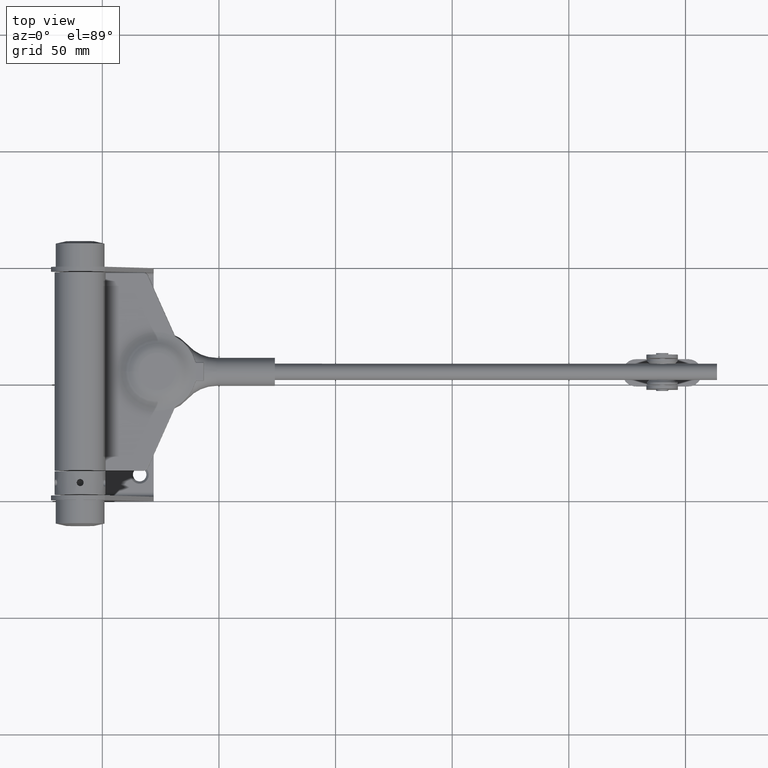
[diagram: clean part render]
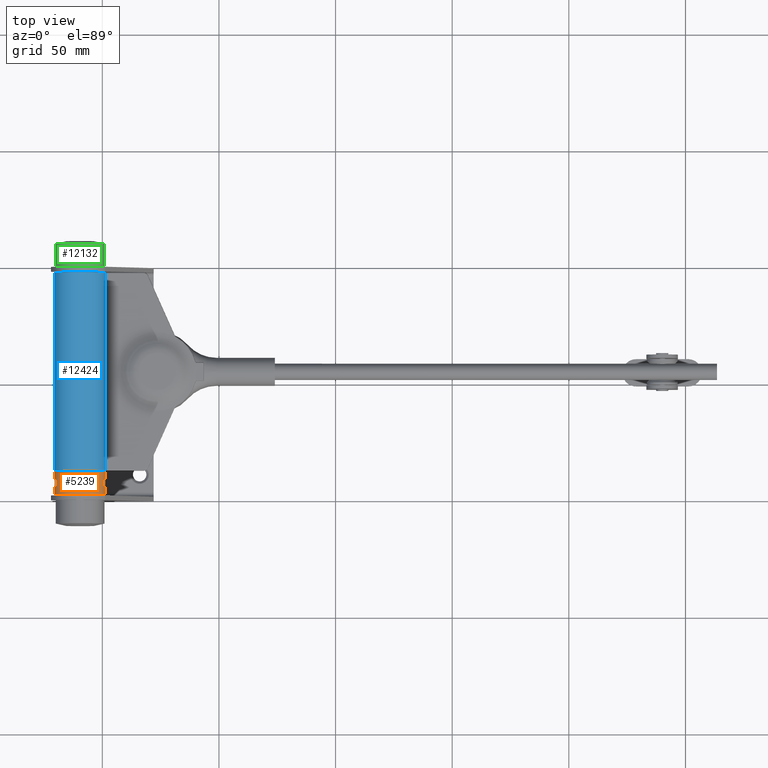
[diagram: same view with three faces highlighted in distinct colors, each labeled with its STEP entity id]
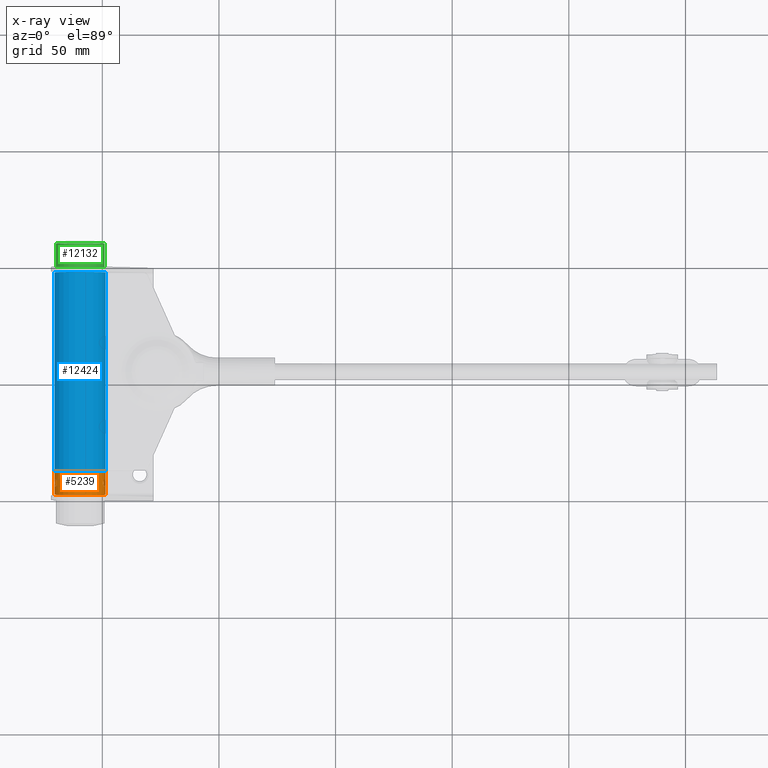
[diagram: x-ray of the same camera — body ghosted, the three highlighted faces saturated]
A machine part, top view with three faces highlighted in distinct colors.
The next image is the same camera in x-ray (body ghosted, the three faces saturated) — at least one of them is partly hidden behind the body in this view.
Their STEP definitions:

[orange] entity #5239 — the highlighted cylindrical surface (bore or boss wall) has radius 11 mm, axis along (0, 1, 0).
#12 = CARTESIAN_POINT ( 'NONE',  ( 6.148529388612073987, 1.452431181521820269, -9.121666627276168171 ) ) ;
#14 = CARTESIAN_POINT ( 'NONE',  ( -7.562714722497001496, -0.4839463892377865450, -7.987915090718844091 ) ) ;
#50 = CARTESIAN_POINT ( 'NONE',  ( -0.9155106826520545971, 1.192215103256997422, 10.96213776218510461 ) ) ;
#62 = CARTESIAN_POINT ( 'NONE',  ( -10.72588113288015776, 1.128852651718871281, 2.441370421391579004 ) ) ;
#170 = CARTESIAN_POINT ( 'NONE',  ( 5.840314493451181477, -1.310680290924018276, -9.323270563392430432 ) ) ;
#239 = CARTESIAN_POINT ( 'NONE',  ( 5.704354102470228227, 1.193704798455214711, -9.405691653094068627 ) ) ;
#364 = CARTESIAN_POINT ( 'NONE',  ( 10.82048223838720347, 0.3955845421627395275, 1.980626412705488892 ) ) ;
#389 = CARTESIAN_POINT ( 'NONE',  ( -7.396986753916988455, 0.9234156699492940268, -8.142719843050402417 ) ) ;
#419 = EDGE_LOOP ( 'NONE', ( #21711 ) ) ;
#437 = CARTESIAN_POINT ( 'NONE',  ( 10.75560056494222927, -0.9916825642055926426, 2.306919381528580448 ) ) ;
#502 = CARTESIAN_POINT ( 'NONE',  ( 0.9212546559148031555, 1.199803542943235435, 10.96223630213403943 ) ) ;
#514 = CARTESIAN_POINT ( 'NONE',  ( 10.14139049093541622, -1.200862300451586373, 4.262858235214821434 ) ) ;
#530 = CYLINDRICAL_SURFACE ( 'NONE', #16997, 11.00000000000000000 ) ;
#588 = CARTESIAN_POINT ( 'NONE',  ( 1.734723475976807094E-15, 4.999999999999997335, 0.000000000000000000 ) ) ;
#618 = CARTESIAN_POINT ( 'NONE',  ( -6.991502801425998115, 1.348456892399369389, -8.492770773105631221 ) ) ;
#987 = VERTEX_POINT ( 'NONE', #14438 ) ;
#1495 = CARTESIAN_POINT ( 'NONE',  ( 5.191715796553792117, -1.219727444046192488E-16, -9.697736183657184483 ) ) ;
#1573 = CARTESIAN_POINT ( 'NONE',  ( 5.200397838848361154, -0.1967606968004345924, -9.693102352215765549 ) ) ;
#1736 = CARTESIAN_POINT ( 'NONE',  ( -7.345490451056918779, -0.9916825642055963064, -8.188320375931157358 ) ) ;
#1790 = CARTESIAN_POINT ( 'NONE',  ( 1.734723475976807094E-15, -4.999999999999997335, 11.00000000000000000 ) ) ;
#1815 = CARTESIAN_POINT ( 'NONE',  ( 6.627153609737886697, 1.499825000284431775, -8.781809318381252893 ) ) ;
#1854 = CARTESIAN_POINT ( 'NONE',  ( -0.7516548559057335543, -1.301774344498628722, 10.97459305519629780 ) ) ;
#1867 = CARTESIAN_POINT ( 'NONE',  ( -10.39999180744122143, 1.490434260984158099, 3.584604037679150146 ) ) ;
#1893 = CARTESIAN_POINT ( 'NONE',  ( 6.069099558319106080, 1.423599352457329159, -9.174655163987134543 ) ) ;
#2009 = CARTESIAN_POINT ( 'NONE',  ( 0.7563379066569094755, -1.310005723733510985, 10.97545342880767016 ) ) ;
#2045 = CARTESIAN_POINT ( 'NONE',  ( 6.544205991239731901, -1.500054600960704088, -8.842112991082993645 ) ) ;
#2064 = CARTESIAN_POINT ( 'NONE',  ( 1.734723475976807094E-15, 4.999999999999997335, 0.000000000000000000 ) ) ;
#2084 = CARTESIAN_POINT ( 'NONE',  ( 1.452431637780416063, -0.3873145048288275105, 10.90370624911236597 ) ) ;
#2128 = CARTESIAN_POINT ( 'NONE',  ( -7.182601977342327082, 1.193704798455212046, -8.331681705065935972 ) ) ;
#2168 = CARTESIAN_POINT ( 'NONE',  ( 10.52240335422114725, -1.499890092889741400, 3.212071677671953118 ) ) ;
#2201 = CARTESIAN_POINT ( 'NONE',  ( -5.840246068389841838, -1.310826343423883822, -9.323338878639892968 ) ) ;
#2237 = CARTESIAN_POINT ( 'NONE',  ( 1.302460655520604860, -0.7504703599725630614, 10.92275567198693231 ) ) ;
#2251 = CARTESIAN_POINT ( 'NONE',  ( 10.49187094668844367, 1.500086629875221123, 3.306127493897090819 ) ) ;
#2314 = CARTESIAN_POINT ( 'NONE',  ( 1.301112446651470966, 0.7527893807653758262, 10.92291670360245348 ) ) ;
#2325 = CARTESIAN_POINT ( 'NONE',  ( 9.982041754464503924, 0.7540569334361674203, 4.622176391939986750 ) ) ;
#2352 = CARTESIAN_POINT ( 'NONE',  ( -6.069166663914760562, -1.423632055747012126, -9.174611517767445434 ) ) ;
#2495 = ORIENTED_EDGE ( 'NONE', *, *, #4241, .T. ) ;
#3130 = CARTESIAN_POINT ( 'NONE',  ( -10.20499461799090035, -1.310680290924016500, 4.109833600939638565 ) ) ;
#3210 = CARTESIAN_POINT ( 'NONE',  ( -9.985964145444786055, -0.7516487550839664467, 4.613406614267189454 ) ) ;
#3429 = CARTESIAN_POINT ( 'NONE',  ( 1.802486111757151122E-15, -1.499999999999994671, 11.00000000000000355 ) ) ;
#3521 = CARTESIAN_POINT ( 'NONE',  ( -10.79936843061965313, -0.6654642516021228582, 2.091669622598185896 ) ) ;
#3541 = CARTESIAN_POINT ( 'NONE',  ( 5.227400555143736582, 0.3955845421627425806, -9.678842921240249808 ) ) ;
#3542 = CARTESIAN_POINT ( 'NONE',  ( -7.062200791526457522, -1.310680290924018943, -8.435518203453703734 ) ) ;
#3594 = CARTESIAN_POINT ( 'NONE',  ( 1.734723475976807094E-15, -1.499999999999994449, 11.00000000000000355 ) ) ;
#3678 = CARTESIAN_POINT ( 'NONE',  ( -10.43139488177107488, 1.500086629875221123, 3.492253683286428156 ) ) ;
#3786 = CARTESIAN_POINT ( 'NONE',  ( 5.916611803302485484, 1.348456892399370499, -9.273724796212500010 ) ) ;
#3836 = CARTESIAN_POINT ( 'NONE',  ( 10.02928012779930000, 0.9212460349021179828, 4.520265762387386310 ) ) ;
#3869 = CARTESIAN_POINT ( 'NONE',  ( 7.472763403791653936, -0.7531955497149609435, -8.072223734441827503 ) ) ;
#3872 = CARTESIAN_POINT ( 'NONE',  ( -5.702697399548497970, 1.192215286157109588, -9.406694524172358740 ) ) ;
#3914 = CARTESIAN_POINT ( 'NONE',  ( 10.67171365346788292, -1.310680290924018720, 2.673420108965852027 ) ) ;
#3989 = CARTESIAN_POINT ( 'NONE',  ( 10.05720356238577473, -0.9911323540295613466, 4.456186358370620937 ) ) ;
#4019 = CARTESIAN_POINT ( 'NONE',  ( -5.200527257715965135, -0.1980102255760640972, -9.693033239276866553 ) ) ;
#4051 = CARTESIAN_POINT ( 'NONE',  ( 1.500086735841702934, -0.09785148346196384517, 10.89723541971634724 ) ) ;
#4062 = CARTESIAN_POINT ( 'NONE',  ( 10.14269542414140801, 1.192215286157108700, 4.258214301208017361 ) ) ;
#4092 = CARTESIAN_POINT ( 'NONE',  ( -5.517167974941250996, -0.9911323540295565726, -9.516606427297297444 ) ) ;
#4125 = CARTESIAN_POINT ( 'NONE',  ( 1.460549597430521596, 0.3943136771651463146, 10.90287073325300327 ) ) ;
#4136 = CARTESIAN_POINT ( 'NONE',  ( 10.39990006685026103, 1.499825000284430665, 3.589069304290117390 ) ) ;
#4165 = CARTESIAN_POINT ( 'NONE',  ( -7.479596790665397954, 0.7563316221577112142, -8.066061536278244404 ) ) ;
#4241 = EDGE_CURVE ( 'NONE', #19837, #19837, #5773, .T. ) ;
#4951 = CARTESIAN_POINT ( 'NONE',  ( -10.49163747686554693, -1.500054600960703866, 3.306831906354939843 ) ) ;
#5214 = CARTESIAN_POINT ( 'NONE',  ( 5.234306830161281177, -0.3886218608046746459, -9.674833481799902657 ) ) ;
#5239 = ADVANCED_FACE ( 'NONE', ( #14468, #10773, #18760, #21056, #23608, #9050, #11912 ), #530, .T. ) ;
#5247 = CARTESIAN_POINT ( 'NONE',  ( -1.500054661872485262, 0.09710879590426363395, 10.89723983467673385 ) ) ;
#5262 = CARTESIAN_POINT ( 'NONE',  ( -10.81354422451033237, -0.4839264239596210992, 2.017102281720891011 ) ) ;
#5332 = CARTESIAN_POINT ( 'NONE',  ( 10.79936178432930483, -0.6655396847754680989, 2.091704214647600146 ) ) ;
#5334 = CARTESIAN_POINT ( 'NONE',  ( -10.30273168349423685, 1.423599352457327383, 3.855124730120790488 ) ) ;
#5362 = CARTESIAN_POINT ( 'NONE',  ( 7.062286907694512728, -1.310826343423885820, -8.435474237925685514 ) ) ;
#5448 = CARTESIAN_POINT ( 'NONE',  ( 7.184067713773785613, 1.192215286157107590, -8.330415991163020450 ) ) ;
#5507 = CARTESIAN_POINT ( 'NONE',  ( -10.23759816702382075, 1.348456892399368501, 4.024903799771543333 ) ) ;
#5612 = CARTESIAN_POINT ( 'NONE',  ( 7.345931890619395332, -0.9911323540295587931, -8.187931668875508606 ) ) ;
#5648 = CARTESIAN_POINT ( 'NONE',  ( 0.3929095347849420050, 1.460757429368037430, 10.99446764604949323 ) ) ;
#5687 = CARTESIAN_POINT ( 'NONE',  ( 7.590304740456137900, 0.3929074165688639098, -7.961968734747020271 ) ) ;
#5689 = CARTESIAN_POINT ( 'NONE',  ( -5.191649720360737241, 0.1953220818559212313, -9.697771557770991535 ) ) ;
#5773 = B_SPLINE_CURVE_WITH_KNOTS ( 'NONE', 3,
 ( #14382, #18396, #16236, #7467, #14, #12630, #7138, #8968, #1736, #14467, #3542, #13182, #9613, #9698, #13025, #11287, #2352, #2201, #11519, #4092, #14951, #16943, #13257, #5845, #16787, #4019, #11439, #5689, #9455, #22284, #14795, #16637, #3872, #7623, #11365, #18615, #7695, #18547, #20617, #18469, #9534, #618, #15114, #2128, #7546, #389, #4165, #13102, #6005, #22437 ),
 .UNSPECIFIED., .T., .F.,
 ( 4, 2, 2, 2, 2, 2, 2, 2, 2, 2, 2, 2, 2, 2, 2, 2, 2, 2, 2, 2, 2, 2, 2, 2, 4 ),
 ( 0.000000000000000000, 0.0002934112971071071324, 0.0005868225942142143731, 0.0008802338913213215597, 0.001173645188428428529, 0.001760467782642646589, 0.002347290376856864431, 0.002640701673963974545, 0.002934112971071085093, 0.003520935565285300117, 0.003814346862392408062, 0.004107758159499515574, 0.004401169456606623086, 0.004694580753713730598, 0.005281403347927946489, 0.005868225942142161512, 0.006161637239249269024, 0.006455048536356378271, 0.007041871130570596764, 0.007335282427677706010, 0.007628693724784816992, 0.007922105021891926238, 0.008215516318999038087, 0.008802338913213258315, 0.009389161507427478542 ),
 .UNSPECIFIED. ) ;
#5805 = CARTESIAN_POINT ( 'NONE',  ( 1.348459399905603595, -0.6643138849464458318, 10.91710087695308040 ) ) ;
#5845 = CARTESIAN_POINT ( 'NONE',  ( -5.259947203863208465, -0.4839264239596243744, -9.660972814522155616 ) ) ;
#5881 = CARTESIAN_POINT ( 'NONE',  ( -0.4839288609336612201, 1.423189939607653054, 10.98972586715079025 ) ) ;
#5895 = CARTESIAN_POINT ( 'NONE',  ( 10.64816999410571086, 1.348456892399368057, 2.761293646733665064 ) ) ;
#6005 = CARTESIAN_POINT ( 'NONE',  ( -7.618766779678499468, 0.1984421344141110710, -7.934380426779861217 ) ) ;
#6299 = B_SPLINE_CURVE_WITH_KNOTS ( 'NONE', 3,
 ( #3429, #7174, #19941, #14588, #18025, #9001, #1854, #21771, #16436, #14513, #8843, #16187, #23604, #5247, #8922, #10770, #16354, #20020, #9096, #21854, #50, #14985, #22246, #5881, #7655, #14910, #16824, #18356, #5648, #18650, #502, #20413, #15068, #2314, #7501, #4125, #13220, #4051, #16675, #2084, #16899, #5805, #2237, #7425, #20186, #7727, #2009, #18430, #9260, #9489 ),
 .UNSPECIFIED., .T., .F.,
 ( 4, 2, 2, 2, 2, 2, 2, 2, 2, 2, 2, 2, 2, 2, 2, 2, 2, 2, 2, 2, 2, 2, 2, 2, 4 ),
 ( 0.000000000000000000, 0.0002934115349056729645, 0.0005868230698113460373, 0.0008802346047170193271, 0.001173646139622692942, 0.001760469209434039738, 0.002347292279245386751, 0.002640703814151060258, 0.002934115349056733765, 0.003520938418868080344, 0.003814349953773753851, 0.004107761488679426490, 0.004401173023585099563, 0.004694584558490772636, 0.005281407628302117914, 0.005868230698113464927, 0.006161642233019137133, 0.006455053767924810205, 0.007041876837736157219, 0.007335288372641830291, 0.007628699907547503364, 0.007922111442453177305, 0.008215522977358849510, 0.008802346047170197391, 0.009389169116981545271 ),
 .UNSPECIFIED. ) ;
#6334 = ORIENTED_EDGE ( 'NONE', *, *, #8783, .T. ) ;
#6506 = EDGE_CURVE ( 'NONE', #10707, #10707, #6299, .T. ) ;
#6543 = ORIENTED_EDGE ( 'NONE', *, *, #13201, .T. ) ;
#6684 = VERTEX_POINT ( 'NONE', #8780 ) ;
#6704 = VERTEX_POINT ( 'NONE', #1790 ) ;
#6874 = CARTESIAN_POINT ( 'NONE',  ( -9.904672840732956729, -0.1967606968004335100, 4.785167375429671743 ) ) ;
#6954 = CARTESIAN_POINT ( 'NONE',  ( -9.900372618753634057, -0.09922106720705460570, 4.794019400235382200 ) ) ;
#7025 = CARTESIAN_POINT ( 'NONE',  ( -10.20562548385357360, 1.302457116837337781, 4.105106537322852134 ) ) ;
#7055 = CARTESIAN_POINT ( 'NONE',  ( 5.259951325779389286, -0.4839463892377863785, -9.660970630368273859 ) ) ;
#7107 = CARTESIAN_POINT ( 'NONE',  ( 10.82569946490557733, -0.1967606968004337875, 1.950538896913549536 ) ) ;
#7138 = CARTESIAN_POINT ( 'NONE',  ( -7.473443048979287795, -0.7516487550839699994, -8.071595226244703269 ) ) ;
#7174 = CARTESIAN_POINT ( 'NONE',  ( -0.09922089003078606029, -1.499999999999994449, 11.00000000000000178 ) ) ;
#7213 = CARTESIAN_POINT ( 'NONE',  ( 7.480571517709965867, 0.7540569334361714171, -8.065154800405652580 ) ) ;
#7298 = CARTESIAN_POINT ( 'NONE',  ( 5.458392152972240119, 0.9234156699492962472, -9.551191265198347935 ) ) ;
#7357 = CARTESIAN_POINT ( 'NONE',  ( -10.82567372722415300, -0.1980102255760644303, 1.950683338643560472 ) ) ;
#7384 = CARTESIAN_POINT ( 'NONE',  ( 7.562718073492932902, -0.4839264239596260953, -7.987911845484271467 ) ) ;
#7425 = CARTESIAN_POINT ( 'NONE',  ( 1.193710125689403156, -0.9136003810217575571, 10.93517495813068052 ) ) ;
#7464 = CARTESIAN_POINT ( 'NONE',  ( 7.392156981468405164, -0.9155028073419364532, -8.146103612725637433 ) ) ;
#7467 = CARTESIAN_POINT ( 'NONE',  ( -7.583823662643655261, -0.3886218608046749234, -7.967809582737003460 ) ) ;
#7501 = CARTESIAN_POINT ( 'NONE',  ( 1.347267570177371754, 0.6667399755428405905, 10.91724868877197352 ) ) ;
#7506 = B_SPLINE_CURVE_WITH_KNOTS ( 'NONE', 3,
 ( #21238, #6954, #6874, #21315, #19710, #10477, #3210, #17729, #23142, #8776, #3130, #15826, #15903, #4951, #23223, #8614, #12291, #21398, #15980, #18043, #14608, #9111, #3521, #5262, #21959, #7357, #21867, #16451, #10953, #23454, #19867, #62, #17968, #14435, #14527, #23380, #12765, #3678, #1867, #16286, #5334, #5507, #7025, #21705, #12526, #21786, #18287, #12447, #19958, #20118 ),
 .UNSPECIFIED., .T., .F.,
 ( 4, 2, 2, 2, 2, 2, 2, 2, 2, 2, 2, 2, 2, 2, 2, 2, 2, 2, 2, 2, 2, 2, 2, 2, 4 ),
 ( 0.000000000000000000, 0.0002934112971071097887, 0.0005868225942142195773, 0.0008802338913213292575, 0.001173645188428439155, 0.001760467782642656780, 0.002347290376856873539, 0.002640701673963983219, 0.002934112971071092899, 0.003520935565285312693, 0.003814346862392421506, 0.004107758159499531186, 0.004401169456606640433, 0.004694580753713748812, 0.005281403347927968173, 0.005868225942142186666, 0.006161637239249295912, 0.006455048536356405159, 0.007041871130570621917, 0.007335282427677730296, 0.007628693724784839543, 0.007922105021891945320, 0.008215516318999050230, 0.008802338913213263519, 0.009389161507427475073 ),
 .UNSPECIFIED. ) ;
#7546 = CARTESIAN_POINT ( 'NONE',  ( -7.240986333037261247, 1.130510068122147604, -8.280878081144242842 ) ) ;
#7623 = CARTESIAN_POINT ( 'NONE',  ( -5.841633043156134519, 1.301108913038395043, -9.321050525075911253 ) ) ;
#7655 = CARTESIAN_POINT ( 'NONE',  ( -0.3904348020054948520, 1.451615636338489113, 10.99349008195833832 ) ) ;
#7695 = CARTESIAN_POINT ( 'NONE',  ( -6.304093887365737281, 1.499825000284431775, -9.016525945770228034 ) ) ;
#7727 = CARTESIAN_POINT ( 'NONE',  ( 0.9234245866482349019, -1.198110369442060508, 10.96204940545172413 ) ) ;
#7740 = CARTESIAN_POINT ( 'NONE',  ( 10.20497941564840261, -1.310826343423886042, 4.109929088377749729 ) ) ;
#7807 = CARTESIAN_POINT ( 'NONE',  ( 9.933964020614926227, -0.4839264239596263173, 4.724171794875021924 ) ) ;
#8614 = CARTESIAN_POINT ( 'NONE',  ( -10.57570964276917458, -1.451978390107856676, 3.027149273963390286 ) ) ;
#8650 = EDGE_LOOP ( 'NONE', ( #6543 ) ) ;
#8776 = CARTESIAN_POINT ( 'NONE',  ( -10.14060134787140299, -1.198958018750907017, 4.264678942825545604 ) ) ;
#8780 = CARTESIAN_POINT ( 'NONE',  ( 1.734723475976807094E-15, 4.999999999999997335, 11.00000000000000000 ) ) ;
#8783 = EDGE_CURVE ( 'NONE', #6704, #6704, #10118, .T. ) ;
#8843 = CARTESIAN_POINT ( 'NONE',  ( -1.310683398620906992, -0.7551610838274481763, 10.92189549734357357 ) ) ;
#8883 = CARTESIAN_POINT ( 'NONE',  ( 5.367122328188984604, -0.7516487550839697773, -9.601926807517772389 ) ) ;
#8922 = CARTESIAN_POINT ( 'NONE',  ( -1.490291506661348908, 0.1966183384481407503, 10.89859646344575239 ) ) ;
#8934 = CARTESIAN_POINT ( 'NONE',  ( 10.81880319122902279, -0.3886218608046739798, 1.988433655489234786 ) ) ;
#8968 = CARTESIAN_POINT ( 'NONE',  ( -7.392685948221706660, -0.9146133221466138385, -8.145624283849484115 ) ) ;
#9001 = CARTESIAN_POINT ( 'NONE',  ( -0.6655446615906072116, -1.347855054338672254, 10.98022391171008216 ) ) ;
#9047 = CARTESIAN_POINT ( 'NONE',  ( 6.781373768259104651, 1.460549766408084427, -8.662912120660998028 ) ) ;
#9050 = FACE_OUTER_BOUND ( 'NONE', #21377, .T. ) ;
#9096 = CARTESIAN_POINT ( 'NONE',  ( -1.200867413996704824, 0.9203501660502425574, 10.93515661468372713 ) ) ;
#9111 = CARTESIAN_POINT ( 'NONE',  ( -10.79032665292079152, -0.7531955497149581680, 2.138186060940658884 ) ) ;
#9214 = CARTESIAN_POINT ( 'NONE',  ( 6.850098427605757934, -1.423632055747011904, -8.607231379975704755 ) ) ;
#9260 = CARTESIAN_POINT ( 'NONE',  ( 0.1984417800615779215, -1.499999999999995337, 11.00000000000000711 ) ) ;
#9302 = CARTESIAN_POINT ( 'NONE',  ( 5.697203435254410309, -1.198958018750909904, -9.410693661954809386 ) ) ;
#9426 = CARTESIAN_POINT ( 'NONE',  ( 10.33447876204744098, 1.460549766408085981, 3.772482645674902990 ) ) ;
#9455 = CARTESIAN_POINT ( 'NONE',  ( -5.226749090433791878, 0.3929074165688670184, -9.679192431795620166 ) ) ;
#9489 = CARTESIAN_POINT ( 'NONE',  ( 1.802486111757151122E-15, -1.499999999999994671, 11.00000000000000355 ) ) ;
#9505 = CARTESIAN_POINT ( 'NONE',  ( 10.03170705565934639, -0.9155028073419386736, 4.513074612430886035 ) ) ;
#9534 = CARTESIAN_POINT ( 'NONE',  ( -6.850160674396876814, 1.423599352457328493, -8.607181046185294448 ) ) ;
#9551 = DIRECTION ( 'NONE',  ( 0.000000000000000000, 0.000000000000000000, 1.000000000000000000 ) ) ;
#9580 = CARTESIAN_POINT ( 'NONE',  ( 10.72545901159244153, 1.130510068122144496, 2.443226117382102824 ) ) ;
#9613 = CARTESIAN_POINT ( 'NONE',  ( -6.624794773790991798, -1.499890092889740734, -8.783534084671064335 ) ) ;
#9667 = CARTESIAN_POINT ( 'NONE',  ( 10.57522055683797291, 1.452431181521819381, 3.028848935820647625 ) ) ;
#9698 = CARTESIAN_POINT ( 'NONE',  ( -6.387078312004116576, -1.500054600960704310, -8.956272932374458762 ) ) ;
#9982 = CARTESIAN_POINT ( 'NONE',  ( 1.734723475976807094E-15, -4.999999999999997335, 0.000000000000000000 ) ) ;
#10118 = CIRCLE ( 'NONE', #15039, 11.00000000000000000 ) ;
#10477 = CARTESIAN_POINT ( 'NONE',  ( -9.966340101453594613, -0.6655396847754667666, 4.655481334144163874 ) ) ;
#10707 = VERTEX_POINT ( 'NONE', #3594 ) ;
#10770 = CARTESIAN_POINT ( 'NONE',  ( -1.451978861620272676, 0.3890821651643225909, 10.90376682771908534 ) ) ;
#10773 = FACE_BOUND ( 'NONE', #15886, .T. ) ;
#10889 = CARTESIAN_POINT ( 'NONE',  ( 5.191715796553791229, 0.1984421344141073795, -9.697736183657189812 ) ) ;
#10953 = CARTESIAN_POINT ( 'NONE',  ( -10.82061332901179540, 0.3929074165688718479, 1.979898828246633880 ) ) ;
#10965 = ORIENTED_EDGE ( 'NONE', *, *, #13672, .F. ) ;
#10976 = CARTESIAN_POINT ( 'NONE',  ( 6.143368989296050131, -1.460375467965762342, -9.126426729119744508 ) ) ;
#11134 = CARTESIAN_POINT ( 'NONE',  ( 7.059681955352350435, 1.301108913038392600, -8.436086189174687888 ) ) ;
#11257 = CARTESIAN_POINT ( 'NONE',  ( 10.79223292982853089, 0.7563316221577115472, 2.129184173876029984 ) ) ;
#11287 = CARTESIAN_POINT ( 'NONE',  ( -6.147064049991682211, -1.451978390107856454, -9.122657000036660691 ) ) ;
#11333 = CARTESIAN_POINT ( 'NONE',  ( 9.900339954372945783, 0.1953220818559188998, 4.794086857106414357 ) ) ;
#11365 = CARTESIAN_POINT ( 'NONE',  ( -5.914562872713551300, 1.347265181280679514, -9.275031815228480525 ) ) ;
#11407 = CARTESIAN_POINT ( 'NONE',  ( 9.921570639471669395, -0.3904336888679624251, 4.750032966406307899 ) ) ;
#11439 = CARTESIAN_POINT ( 'NONE',  ( -5.191748978901890688, -0.09851510423733833566, -9.697718419374716348 ) ) ;
#11487 = CARTESIAN_POINT ( 'NONE',  ( 9.917815405005093510, 0.3929074165688645204, 4.758425136358007457 ) ) ;
#11519 = CARTESIAN_POINT ( 'NONE',  ( -5.698912050486497627, -1.200862300451579268, -9.409684525210915140 ) ) ;
#11912 = FACE_OUTER_BOUND ( 'NONE', #12381, .T. ) ;
#12115 = VERTEX_POINT ( 'NONE', #23625 ) ;
#12291 = CARTESIAN_POINT ( 'NONE',  ( -10.60104970929285884, -1.423632055747013236, 2.937009628419212426 ) ) ;
#12381 = EDGE_LOOP ( 'NONE', ( #6334 ) ) ;
#12447 = CARTESIAN_POINT ( 'NONE',  ( -9.918137013876709318, 0.3955845421627410263, 4.757759455030100781 ) ) ;
#12451 = CARTESIAN_POINT ( 'NONE',  ( -7.618766779678497691, 0.000000000000000000, -7.934380426779859441 ) ) ;
#12526 = CARTESIAN_POINT ( 'NONE',  ( -10.11317089266316671, 1.130510068122144940, 4.327655181018683628 ) ) ;
#12630 = CARTESIAN_POINT ( 'NONE',  ( -7.507394322397938247, -0.6655396847754703193, -8.039929847855258771 ) ) ;
#12765 = CARTESIAN_POINT ( 'NONE',  ( -10.52329790040031376, 1.499825000284431775, 3.209289823450013568 ) ) ;
#12794 = CARTESIAN_POINT ( 'NONE',  ( 6.386480522088868739, 1.500086629875221345, -8.956712650791409658 ) ) ;
#12871 = CARTESIAN_POINT ( 'NONE',  ( 7.618820841126519028, 0.1953220818559180394, -7.934328515788210190 ) ) ;
#12996 = CARTESIAN_POINT ( 'NONE',  ( 9.986351870348084248, -0.7531955497149624978, 4.612566013568705436 ) ) ;
#13025 = CARTESIAN_POINT ( 'NONE',  ( -6.305783622589920867, -1.490291314580465709, -9.013676279970050942 ) ) ;
#13102 = CARTESIAN_POINT ( 'NONE',  ( -7.589771022498330133, 0.3955845421627401937, -7.962480309803227740 ) ) ;
#13119 = B_SPLINE_CURVE_WITH_KNOTS ( 'NONE', 3,
 ( #1495, #14232, #1573, #5214, #7055, #19821, #8883, #21656, #23479, #9302, #170, #10976, #22056, #2045, #21981, #14550, #9214, #5362, #16557, #5612, #7464, #3869, #21814, #7384, #14713, #20227, #18316, #12871, #5687, #7213, #19982, #16393, #5448, #11134, #23561, #9047, #1815, #12794, #18148, #12, #1893, #3786, #18236, #239, #16480, #7298, #16314, #3541, #10889, #14793 ),
 .UNSPECIFIED., .T., .F.,
 ( 4, 2, 2, 2, 2, 2, 2, 2, 2, 2, 2, 2, 2, 2, 2, 2, 2, 2, 2, 2, 2, 2, 2, 2, 4 ),
 ( 0.000000000000000000, 0.0002934112971071089213, 0.0005868225942142178426, 0.0008802338913213267639, 0.001173645188428435685, 0.001760467782642654395, 0.002347290376856872671, 0.002640701673963980617, 0.002934112971071088562, 0.003520935565285307923, 0.003814346862392416736, 0.004107758159499525982, 0.004401169456606635229, 0.004694580753713744475, 0.005281403347927962968, 0.005868225942142182329, 0.006161637239249289841, 0.006455048536356398220, 0.007041871130570617580, 0.007335282427677723358, 0.007628693724784830002, 0.007922105021891936646, 0.008215516318999043291, 0.008802338913213258315, 0.009389161507427471604 ),
 .UNSPECIFIED. ) ;
#13149 = CARTESIAN_POINT ( 'NONE',  ( 10.30276031845729356, -1.423632055747013014, 3.855049975907846260 ) ) ;
#13182 = CARTESIAN_POINT ( 'NONE',  ( -6.781342190811100679, -1.460375467965763230, -8.662912066491324836 ) ) ;
#13201 = EDGE_CURVE ( 'NONE', #12115, #12115, #7506, .T. ) ;
#13220 = CARTESIAN_POINT ( 'NONE',  ( 1.499824784090836083, 0.1996650407121646209, 10.89727147721399803 ) ) ;
#13228 = CARTESIAN_POINT ( 'NONE',  ( 10.43162004397093412, -1.500054600960704976, 3.491546571518214126 ) ) ;
#13257 = CARTESIAN_POINT ( 'NONE',  ( -5.326484398086387628, -0.6654642516021278542, -9.624448257812325380 ) ) ;
#13461 = DIRECTION ( 'NONE',  ( 0.000000000000000000, 0.000000000000000000, 1.000000000000000000 ) ) ;
#13467 = ORIENTED_EDGE ( 'NONE', *, *, #15951, .T. ) ;
#13672 = EDGE_CURVE ( 'NONE', #6684, #6684, #17741, .T. ) ;
#13699 = B_SPLINE_CURVE_WITH_KNOTS ( 'NONE', 3,
 ( #20199, #19954, #7107, #8934, #14433, #5332, #14523, #14998, #437, #16913, #3914, #16685, #2168, #13228, #20585, #14844, #13149, #7740, #514, #3989, #9505, #12996, #14925, #7807, #11407, #20274, #22255, #11333, #11487, #2325, #3836, #15080, #4062, #20354, #20506, #9426, #4136, #2251, #16834, #9667, #16759, #5895, #18659, #18517, #9580, #22182, #11257, #364, #16606, #22403 ),
 .UNSPECIFIED., .T., .F.,
 ( 4, 2, 2, 2, 2, 2, 2, 2, 2, 2, 2, 2, 2, 2, 2, 2, 2, 2, 2, 2, 2, 2, 2, 2, 4 ),
 ( 0.000000000000000000, 0.0002934112971071087045, 0.0005868225942142170836, 0.0008802338913213254628, 0.001173645188428433734, 0.001760467782642649625, 0.002347290376856865299, 0.002640701673963972377, 0.002934112971071079455, 0.003520935565285295780, 0.003814346862392403725, 0.004107758159499512104, 0.004401169456606620484, 0.004694580753713728863, 0.005281403347927945621, 0.005868225942142162380, 0.006161637239249270759, 0.006455048536356379138, 0.007041871130570599366, 0.007335282427677707745, 0.007628693724784816124, 0.007922105021891926238, 0.008215516318999034617, 0.008802338913213251376, 0.009389161507427469869 ),
 .UNSPECIFIED. ) ;
#14232 = CARTESIAN_POINT ( 'NONE',  ( 5.191715796553792117, -0.09922106720705439753, -9.697736183657182707 ) ) ;
#14382 = CARTESIAN_POINT ( 'NONE',  ( -7.618766779678497691, -1.355252715606880543E-16, -7.934380426779859441 ) ) ;
#14433 = CARTESIAN_POINT ( 'NONE',  ( 10.81354342099870891, -0.4839463892377851018, 2.017106876836803675 ) ) ;
#14435 = CARTESIAN_POINT ( 'NONE',  ( -10.67000972582728302, 1.301108913038394599, 2.675360153822769593 ) ) ;
#14438 = CARTESIAN_POINT ( 'NONE',  ( 5.191715796553791229, 0.000000000000000000, -9.697736183657184483 ) ) ;
#14467 = CARTESIAN_POINT ( 'NONE',  ( -7.189568848154702430, -1.198958018750910570, -8.326426722158457139 ) ) ;
#14468 = FACE_BOUND ( 'NONE', #419, .T. ) ;
#14513 = CARTESIAN_POINT ( 'NONE',  ( -1.198964913299075841, -0.9223237274877774672, 10.93534439137421366 ) ) ;
#14523 = CARTESIAN_POINT ( 'NONE',  ( 10.79050706957852412, -0.7516487550839683340, 2.137278101710006428 ) ) ;
#14527 = CARTESIAN_POINT ( 'NONE',  ( -10.64877988868550318, 1.347265181280680402, 2.758941106857715653 ) ) ;
#14550 = CARTESIAN_POINT ( 'NONE',  ( 6.776615128851768866, -1.451978390107856676, -8.665261367693149808 ) ) ;
#14588 = CARTESIAN_POINT ( 'NONE',  ( -0.3886231708856778266, -1.452080950892421729, 10.99355180745196492 ) ) ;
#14608 = CARTESIAN_POINT ( 'NONE',  ( -10.76854019030190024, -0.9155028073419344548, 2.245335404296280313 ) ) ;
#14713 = CARTESIAN_POINT ( 'NONE',  ( 7.583483743805753186, -0.3904336888679620921, -7.968133498091432898 ) ) ;
#14761 = DIRECTION ( 'NONE',  ( -0.000000000000000000, 1.000000000000000000, -0.000000000000000000 ) ) ;
#14793 = CARTESIAN_POINT ( 'NONE',  ( 5.191715796553792117, -1.219727444046192488E-16, -9.697736183657184483 ) ) ;
#14795 = CARTESIAN_POINT ( 'NONE',  ( -5.456912513162738065, 0.9212460349021189820, -9.552034771092985821 ) ) ;
#14844 = CARTESIAN_POINT ( 'NONE',  ( 10.33524252829879053, -1.451978390107857786, 3.767230953400937832 ) ) ;
#14910 = CARTESIAN_POINT ( 'NONE',  ( -0.1980093425005734764, 1.490107241295724805, 10.99863881655433850 ) ) ;
#14925 = CARTESIAN_POINT ( 'NONE',  ( 9.966325145718949230, -0.6654642516021297416, 4.655513226291458473 ) ) ;
#14951 = CARTESIAN_POINT ( 'NONE',  ( -5.463102790937089281, -0.9155028073419336776, -9.547643520973597475 ) ) ;
#14963 = EDGE_LOOP ( 'NONE', ( #16152 ) ) ;
#14985 = CARTESIAN_POINT ( 'NONE',  ( -0.7532021306663971849, 1.300854800830486324, 10.97448452901247862 ) ) ;
#14998 = CARTESIAN_POINT ( 'NONE',  ( 10.76868639095038560, -0.9146133221466113961, 2.244636700233039850 ) ) ;
#15039 = AXIS2_PLACEMENT_3D ( 'NONE', #9982, #15324, #13461 ) ;
#15068 = CARTESIAN_POINT ( 'NONE',  ( 1.192220905689032051, 0.9155297715872047215, 10.93533777369070847 ) ) ;
#15080 = CARTESIAN_POINT ( 'NONE',  ( 10.11242164522266229, 1.128852651718869948, 4.329404587279015004 ) ) ;
#15114 = CARTESIAN_POINT ( 'NONE',  ( -7.057900035143512163, 1.302457116837339335, -8.437578935534386204 ) ) ;
#15324 = DIRECTION ( 'NONE',  ( -0.000000000000000000, 1.000000000000000000, -0.000000000000000000 ) ) ;
#15826 = CARTESIAN_POINT ( 'NONE',  ( -10.33446895256094500, -1.460375467965762120, 3.772452630476565982 ) ) ;
#15886 = EDGE_LOOP ( 'NONE', ( #13467 ) ) ;
#15903 = CARTESIAN_POINT ( 'NONE',  ( -10.40081149667474847, -1.499890092889739845, 3.586292935897072542 ) ) ;
#15951 = EDGE_CURVE ( 'NONE', #987, #987, #13119, .T. ) ;
#15980 = CARTESIAN_POINT ( 'NONE',  ( -10.71020245703200757, -1.200862300451582820, 2.512235011411056096 ) ) ;
#16152 = ORIENTED_EDGE ( 'NONE', *, *, #6506, .T. ) ;
#16187 = CARTESIAN_POINT ( 'NONE',  ( -1.460375320810246347, -0.3942881640580507274, 10.90288934863977843 ) ) ;
#16236 = CARTESIAN_POINT ( 'NONE',  ( -7.611676845475818354, -0.1967606968004345924, -7.941205607014395262 ) ) ;
#16286 = CARTESIAN_POINT ( 'NONE',  ( -10.33584588564230700, 1.452431181521818493, 3.765568420576262731 ) ) ;
#16314 = CARTESIAN_POINT ( 'NONE',  ( 5.359957865527233523, 0.7563316221577118803, -9.606069359406705033 ) ) ;
#16354 = CARTESIAN_POINT ( 'NONE',  ( -1.423632848345541824, 0.4826397892659986533, 10.90755271237982349 ) ) ;
#16393 = CARTESIAN_POINT ( 'NONE',  ( 7.242418587068684133, 1.128852651718869282, -8.279624908219117785 ) ) ;
#16436 = CARTESIAN_POINT ( 'NONE',  ( -0.9916901964606196218, -1.129645977572705906, 10.95542646406630993 ) ) ;
#16451 = CARTESIAN_POINT ( 'NONE',  ( -10.82743682599330626, 0.1953220818559250893, 1.940776077953774159 ) ) ;
#16480 = CARTESIAN_POINT ( 'NONE',  ( 5.637995226772725132, 1.130510068122149159, -9.445519291859794109 ) ) ;
#16557 = CARTESIAN_POINT ( 'NONE',  ( 7.188081110935033990, -1.200862300451581932, -8.327739871405276162 ) ) ;
#16606 = CARTESIAN_POINT ( 'NONE',  ( 10.82742360187845243, 0.1984421344141092114, 1.940849851350075594 ) ) ;
#16637 = CARTESIAN_POINT ( 'NONE',  ( -5.636360797660268318, 1.128852651718870614, -9.446494194658612287 ) ) ;
#16675 = CARTESIAN_POINT ( 'NONE',  ( 1.490434331210564567, -0.1953860087754974995, 10.89857665632106887 ) ) ;
#16685 = CARTESIAN_POINT ( 'NONE',  ( 10.57815303162811738, -1.460375467965762564, 3.022470152059841375 ) ) ;
#16759 = CARTESIAN_POINT ( 'NONE',  ( 10.60107048254503326, 1.423599352457328049, 2.936932319781555556 ) ) ;
#16787 = CARTESIAN_POINT ( 'NONE',  ( -5.234719932667456277, -0.3904336888679598161, -9.674610295123361681 ) ) ;
#16807 = DIRECTION ( 'NONE',  ( -0.000000000000000000, 1.000000000000000000, -0.000000000000000000 ) ) ;
#16824 = CARTESIAN_POINT ( 'NONE',  ( -0.09851459464985867776, 1.499962747906386840, 10.99999492016941005 ) ) ;
#16834 = CARTESIAN_POINT ( 'NONE',  ( 10.52074750223600219, 1.490434260984158987, 3.212956223789097621 ) ) ;
#16899 = CARTESIAN_POINT ( 'NONE',  ( 1.423600298622414773, -0.4827192565959946280, 10.90755685295867039 ) ) ;
#16913 = CARTESIAN_POINT ( 'NONE',  ( 10.71063421196455501, -1.198958018750909238, 2.510298181357225822 ) ) ;
#16943 = CARTESIAN_POINT ( 'NONE',  ( -5.367930096918528626, -0.7531955497149588341, -9.601474646247314837 ) ) ;
#16997 = AXIS2_PLACEMENT_3D ( 'NONE', #588, #14761, #18740 ) ;
#17729 = CARTESIAN_POINT ( 'NONE',  ( -10.03141464652446579, -0.9146133221466093977, 4.513725810477147604 ) ) ;
#17741 = CIRCLE ( 'NONE', #20890, 11.00000000000000000 ) ;
#17968 = CARTESIAN_POINT ( 'NONE',  ( -10.70852853425036244, 1.192215286157108256, 2.516759053437029436 ) ) ;
#18025 = CARTESIAN_POINT ( 'NONE',  ( -0.4839486361568829942, -1.423185392575385899, 10.98972522702108101 ) ) ;
#18043 = CARTESIAN_POINT ( 'NONE',  ( -10.75572922077548377, -0.9911323540295576828, 2.306345439250122809 ) ) ;
#18148 = CARTESIAN_POINT ( 'NONE',  ( 6.306792724924372706, 1.490434260984158987, -9.012967392963938451 ) ) ;
#18236 = CARTESIAN_POINT ( 'NONE',  ( 5.843603372935849194, 1.302457116837340445, -9.319817102243215245 ) ) ;
#18287 = CARTESIAN_POINT ( 'NONE',  ( -9.982602904303039537, 0.7563316221577113252, 4.620969174638593024 ) ) ;
#18316 = CARTESIAN_POINT ( 'NONE',  ( 7.618739630932421569, -0.09851510423734213817, -7.934406495603068876 ) ) ;
#18356 = CARTESIAN_POINT ( 'NONE',  ( 0.1953226422279473740, 1.500074180597992912, 11.00001011553537289 ) ) ;
#18372 = CARTESIAN_POINT ( 'NONE',  ( 10.82742360187844355, 0.000000000000000000, 1.940849851350075150 ) ) ;
#18396 = CARTESIAN_POINT ( 'NONE',  ( -7.618766779678496803, -0.09922106720705452243, -7.934380426779859441 ) ) ;
#18404 = VERTEX_POINT ( 'NONE', #18372 ) ;
#18430 = CARTESIAN_POINT ( 'NONE',  ( 0.3955856219829526621, -1.460025356266485108, 10.99436842263586378 ) ) ;
#18469 = CARTESIAN_POINT ( 'NONE',  ( -6.775220413848130008, 1.452431181521819603, -8.666348945522887703 ) ) ;
#18517 = CARTESIAN_POINT ( 'NONE',  ( 10.70808669653379219, 1.193704798455209382, 2.518644575752666537 ) ) ;
#18547 = CARTESIAN_POINT ( 'NONE',  ( -6.544808915548391504, 1.500086629875221123, -8.841680339552299372 ) ) ;
#18615 = CARTESIAN_POINT ( 'NONE',  ( -6.143359282846398095, 1.460549766408085537, -9.126456777796777331 ) ) ;
#18650 = CARTESIAN_POINT ( 'NONE',  ( 0.7540624146361503133, 1.311327588671851840, 10.97561326748474109 ) ) ;
#18659 = CARTESIAN_POINT ( 'NONE',  ( 10.66944553639135940, 1.302457116837337114, 2.677615197415572190 ) ) ;
#18740 = DIRECTION ( 'NONE',  ( 0.000000000000000000, 0.000000000000000000, 1.000000000000000000 ) ) ;
#18760 = FACE_BOUND ( 'NONE', #22429, .T. ) ;
#19710 = CARTESIAN_POINT ( 'NONE',  ( -9.933966071501725281, -0.4839463892377839915, 4.724167605055870744 ) ) ;
#19821 = CARTESIAN_POINT ( 'NONE',  ( 5.326515243263723498, -0.6655396847754695422, -9.624431247283443014 ) ) ;
#19837 = VERTEX_POINT ( 'NONE', #12451 ) ;
#19867 = CARTESIAN_POINT ( 'NONE',  ( -10.77080361631044347, 0.9212460349021233119, 2.238091129367870469 ) ) ;
#19941 = CARTESIAN_POINT ( 'NONE',  ( -0.1967608052062565505, -1.490252408965832442, 10.99865875903122081 ) ) ;
#19954 = CARTESIAN_POINT ( 'NONE',  ( 10.82742360187844355, -0.09922106720705457794, 1.940849851350075150 ) ) ;
#19958 = CARTESIAN_POINT ( 'NONE',  ( -9.900372618753630505, 0.1984421344141065746, 4.794019400235380424 ) ) ;
#19982 = CARTESIAN_POINT ( 'NONE',  ( 7.398246209541301077, 0.9212460349021196482, -8.141573279624104487 ) ) ;
#20020 = CARTESIAN_POINT ( 'NONE',  ( -1.310829227117657148, 0.7552571413888262697, 10.92188048727257943 ) ) ;
#20118 = CARTESIAN_POINT ( 'NONE',  ( -9.900372618753632281, 1.897353801849632760E-16, 4.794019400235381312 ) ) ;
#20186 = CARTESIAN_POINT ( 'NONE',  ( 1.130516797368213533, -0.9906952745501896862, 10.94197156844076702 ) ) ;
#20199 = CARTESIAN_POINT ( 'NONE',  ( 10.82742360187844533, -1.084202172485504434E-16, 1.940849851350075372 ) ) ;
#20227 = CARTESIAN_POINT ( 'NONE',  ( 7.611571122535434775, -0.1980102255760667063, -7.941307334599110312 ) ) ;
#20274 = CARTESIAN_POINT ( 'NONE',  ( 9.904736919230009207, -0.1980102255760679275, 4.785035391385826564 ) ) ;
#20354 = CARTESIAN_POINT ( 'NONE',  ( 10.20475644132816129, 1.301108913038394821, 4.107262528142425317 ) ) ;
#20413 = CARTESIAN_POINT ( 'NONE',  ( 1.128859521965071444, 0.9925904746393366951, 10.94214375252337490 ) ) ;
#20506 = CARTESIAN_POINT ( 'NONE',  ( 10.23670879385913324, 1.347265181280678403, 4.027165531550585875 ) ) ;
#20585 = CARTESIAN_POINT ( 'NONE',  ( 10.39959209983132915, -1.490291314580466597, 3.585770674784422241 ) ) ;
#20617 = CARTESIAN_POINT ( 'NONE',  ( -6.622935238232209976, 1.490434260984158543, -8.783276412135295530 ) ) ;
#20890 = AXIS2_PLACEMENT_3D ( 'NONE', #2064, #16807, #9551 ) ;
#21056 = FACE_BOUND ( 'NONE', #8650, .T. ) ;
#21238 = CARTESIAN_POINT ( 'NONE',  ( -9.900372618753632281, 1.897353801849632760E-16, 4.794019400235381312 ) ) ;
#21315 = CARTESIAN_POINT ( 'NONE',  ( -9.921367618360731555, -0.3886218608046736467, 4.750456343781358726 ) ) ;
#21377 = EDGE_LOOP ( 'NONE', ( #10965 ) ) ;
#21398 = CARTESIAN_POINT ( 'NONE',  ( -10.67175748062234497, -1.310826343423887375, 2.673333922292947751 ) ) ;
#21656 = CARTESIAN_POINT ( 'NONE',  ( 5.462483462369747578, -0.9146133221466128393, -9.547998477482607882 ) ) ;
#21705 = CARTESIAN_POINT ( 'NONE',  ( -10.14344625212994444, 1.193704798455211602, 4.256429175917683772 ) ) ;
#21711 = ORIENTED_EDGE ( 'NONE', *, *, #22388, .T. ) ;
#21771 = CARTESIAN_POINT ( 'NONE',  ( -0.9146204051370453447, -1.192925387821238026, 10.96221452372085459 ) ) ;
#21786 = CARTESIAN_POINT ( 'NONE',  ( -10.02998138122564953, 0.9234156699492941378, 4.518713641325036612 ) ) ;
#21814 = CARTESIAN_POINT ( 'NONE',  ( 7.507420032056269399, -0.6654642516021292975, -8.039905768890871940 ) ) ;
#21854 = CARTESIAN_POINT ( 'NONE',  ( -0.9911400898390937408, 1.130231421369405131, 10.95548148214987272 ) ) ;
#21867 = CARTESIAN_POINT ( 'NONE',  ( -10.82741696095131090, -0.09851510423733866872, 1.940886899103634766 ) ) ;
#21959 = CARTESIAN_POINT ( 'NONE',  ( -10.81871858378077356, -0.3904336888679587614, 1.988895507795592099 ) ) ;
#21981 = CARTESIAN_POINT ( 'NONE',  ( 6.623921259609097945, -1.490291314580465931, -8.782535756916491465 ) ) ;
#22056 = CARTESIAN_POINT ( 'NONE',  ( 6.306463157979280254, -1.499890092889740734, -9.014815541566941093 ) ) ;
#22182 = CARTESIAN_POINT ( 'NONE',  ( 10.77045862837951518, 0.9234156699492931386, 2.239759008106761762 ) ) ;
#22246 = CARTESIAN_POINT ( 'NONE',  ( -0.6654692299742590578, 1.347889999444485065, 10.98022825270610348 ) ) ;
#22255 = CARTESIAN_POINT ( 'NONE',  ( 9.900389022253918370, -0.09851510423734066713, 4.793985524534121190 ) ) ;
#22284 = CARTESIAN_POINT ( 'NONE',  ( -5.358794301245392688, 0.7540569334361679754, -9.606716183120008523 ) ) ;
#22388 = EDGE_CURVE ( 'NONE', #18404, #18404, #13699, .T. ) ;
#22403 = CARTESIAN_POINT ( 'NONE',  ( 10.82742360187844533, -1.084202172485504434E-16, 1.940849851350075372 ) ) ;
#22429 = EDGE_LOOP ( 'NONE', ( #2495 ) ) ;
#22437 = CARTESIAN_POINT ( 'NONE',  ( -7.618766779678497691, -1.355252715606880543E-16, -7.934380426779859441 ) ) ;
#23142 = CARTESIAN_POINT ( 'NONE',  ( -10.05743683243718145, -0.9916825642055900891, 4.455646407312153556 ) ) ;
#23223 = CARTESIAN_POINT ( 'NONE',  ( -10.52110986407207172, -1.490291314580465709, 3.211777452306329828 ) ) ;
#23380 = CARTESIAN_POINT ( 'NONE',  ( -10.57817861016031635, 1.460549766408085759, 3.022451635125785074 ) ) ;
#23454 = CARTESIAN_POINT ( 'NONE',  ( -10.79248853459883506, 0.7540569334361730824, 2.127877678963881802 ) ) ;
#23479 = CARTESIAN_POINT ( 'NONE',  ( 5.517674069646250068, -0.9916825642055948631, -9.516306710410884051 ) ) ;
#23561 = CARTESIAN_POINT ( 'NONE',  ( 6.993379004750342354, 1.347265181280678625, -8.491226015405500149 ) ) ;
#23604 = CARTESIAN_POINT ( 'NONE',  ( -1.499889969477739671, -0.1967396931214120681, 10.89726250448907408 ) ) ;
#23608 = FACE_BOUND ( 'NONE', #14963, .T. ) ;
#23625 = CARTESIAN_POINT ( 'NONE',  ( -9.900372618753635834, 0.000000000000000000, 4.794019400235383088 ) ) ;

[blue] entity #12424 — the highlighted cylindrical surface (edge-blend (fillet) strip) has radius 11 mm, axis along (0, -1, 0).
#1407 = DIRECTION ( 'NONE',  ( 2.465190328815646839E-32, 0.000000000000000000, 1.000000000000000000 ) ) ;
#1536 = ORIENTED_EDGE ( 'NONE', *, *, #13815, .T. ) ;
#1617 = EDGE_CURVE ( 'NONE', #11031, #3819, #10519, .T. ) ;
#2243 = CARTESIAN_POINT ( 'NONE',  ( -0.5000000000000004441, -42.50000000000000711, 10.98863048791799990 ) ) ;
#2831 = CARTESIAN_POINT ( 'NONE',  ( -0.5000000000000004441, 42.49999999999999289, 10.98863048791800168 ) ) ;
#3032 = ORIENTED_EDGE ( 'NONE', *, *, #18564, .F. ) ;
#3159 = CARTESIAN_POINT ( 'NONE',  ( 0.9999999999999974465, 41.99999999999999289, 10.95445115010337034 ) ) ;
#3455 = CARTESIAN_POINT ( 'NONE',  ( 0.000000000000000000, 42.49999999999999289, -2.428612866367529932E-14 ) ) ;
#3819 = VERTEX_POINT ( 'NONE', #16738 ) ;
#3853 = DIRECTION ( 'NONE',  ( -3.769267568384192781E-30, -1.000000000000000000, 2.070759876205157040E-30 ) ) ;
#4127 = VERTEX_POINT ( 'NONE', #3159 ) ;
#4223 = CARTESIAN_POINT ( 'NONE',  ( 0.9999999999999974465, -42.00000000000000711, 10.95445115010337034 ) ) ;
#4282 = CARTESIAN_POINT ( 'NONE',  ( -0.6320638355095601346, -42.50000000000000711, 10.98262137533319205 ) ) ;
#4499 = CARTESIAN_POINT ( 'NONE',  ( -1.000000000000000888, 41.99999999999999289, 10.95445115010337034 ) ) ;
#4867 = DIRECTION ( 'NONE',  ( 3.769267568384192781E-30, 1.000000000000000000, -2.070759876205157040E-30 ) ) ;
#5800 = CARTESIAN_POINT ( 'NONE',  ( 0.5000000000000004441, 42.49999999999999289, 10.98863048791802655 ) ) ;
#6060 = ORIENTED_EDGE ( 'NONE', *, *, #8612, .T. ) ;
#7037 = CARTESIAN_POINT ( 'NONE',  ( 0.6320576236962777150, -42.50000000000001421, 10.98262165798048606 ) ) ;
#7310 = CARTESIAN_POINT ( 'NONE',  ( 0.9999999999999974465, 42.49999999999999289, 10.95445115010337034 ) ) ;
#7650 = CARTESIAN_POINT ( 'NONE',  ( 0.9455413487506251213, 42.26169591073745124, 10.95967659329183874 ) ) ;
#8475 = CARTESIAN_POINT ( 'NONE',  ( -0.6320576236962779371, 42.49999999999999289, 10.98262165798048429 ) ) ;
#8528 = CARTESIAN_POINT ( 'NONE',  ( 0.000000000000000000, -42.50000000000000711, 0.000000000000000000 ) ) ;
#8575 = VERTEX_POINT ( 'NONE', #20686 ) ;
#8612 = EDGE_CURVE ( 'NONE', #8575, #11031, #22938, .T. ) ;
#8812 = VERTEX_POINT ( 'NONE', #4223 ) ;
#8841 = ORIENTED_EDGE ( 'NONE', *, *, #21430, .T. ) ;
#8945 = CARTESIAN_POINT ( 'NONE',  ( 0.7613903877043848301, -42.44571469679299724, 10.97400699589119277 ) ) ;
#9288 = CARTESIAN_POINT ( 'NONE',  ( -0.5000000000000004441, 42.49999999999999289, 10.98863048791800168 ) ) ;
#9615 = VECTOR ( 'NONE', #15096, 1000.000000000000000 ) ;
#10519 = B_SPLINE_CURVE_WITH_KNOTS ( 'NONE', 3,
 ( #2243, #4282, #13067, #16906, #14917, #16752 ),
 .UNSPECIFIED., .F., .F.,
 ( 4, 2, 4 ),
 ( 0.000000000000000000, 0.0003909633440213430735, 0.0007819266880426861471 ),
 .UNSPECIFIED. ) ;
#10606 = AXIS2_PLACEMENT_3D ( 'NONE', #8528, #4867, #21159 ) ;
#10639 = DIRECTION ( 'NONE',  ( 3.769267568384192781E-30, 1.000000000000000000, -2.070759876205157040E-30 ) ) ;
#11031 = VERTEX_POINT ( 'NONE', #14454 ) ;
#11191 = VERTEX_POINT ( 'NONE', #9288 ) ;
#11733 = CARTESIAN_POINT ( 'NONE',  ( -1.000000000000000888, 42.49999999999999289, 10.95445115010337034 ) ) ;
#11734 = LINE ( 'NONE', #7310, #16595 ) ;
#11841 = VERTEX_POINT ( 'NONE', #18079 ) ;
#12010 = EDGE_CURVE ( 'NONE', #4127, #8812, #11734, .T. ) ;
#12424 = ADVANCED_FACE ( 'NONE', ( #18906 ), #22575, .T. ) ;
#13067 = CARTESIAN_POINT ( 'NONE',  ( -0.7610640920791053032, -42.44591185560619095, 10.97403029517843187 ) ) ;
#13815 = EDGE_CURVE ( 'NONE', #11841, #11191, #17611, .T. ) ;
#13910 = CARTESIAN_POINT ( 'NONE',  ( -0.7613903877043880497, 42.44571469679299724, 10.97400699589119277 ) ) ;
#14440 = ORIENTED_EDGE ( 'NONE', *, *, #21736, .F. ) ;
#14449 = CARTESIAN_POINT ( 'NONE',  ( 0.9999999999999974465, -42.00000000000000711, 10.95445115010337034 ) ) ;
#14454 = CARTESIAN_POINT ( 'NONE',  ( -0.5000000000000004441, -42.50000000000000711, 10.98863048791799990 ) ) ;
#14827 = CARTESIAN_POINT ( 'NONE',  ( 0.7610640920791036379, 42.44591185560619095, 10.97403029517843365 ) ) ;
#14917 = CARTESIAN_POINT ( 'NONE',  ( -1.000000000000001110, -42.13220651640507697, 10.95445115010336856 ) ) ;
#15096 = DIRECTION ( 'NONE',  ( -3.769267568384192781E-30, -1.000000000000000000, 2.070759876205157040E-30 ) ) ;
#15615 = LINE ( 'NONE', #11733, #9615 ) ;
#15926 = CARTESIAN_POINT ( 'NONE',  ( -0.9457098844811049343, 42.26139859333469673, 10.95966138540567592 ) ) ;
#16217 = CARTESIAN_POINT ( 'NONE',  ( 0.5000000000000004441, -42.50000000000000711, 10.98863048791800345 ) ) ;
#16568 = DIRECTION ( 'NONE',  ( -3.769267568384192781E-30, -1.000000000000000000, 2.070759876205157040E-30 ) ) ;
#16595 = VECTOR ( 'NONE', #16568, 1000.000000000000000 ) ;
#16738 = CARTESIAN_POINT ( 'NONE',  ( -1.000000000000000888, -42.00000000000000711, 10.95445115010337034 ) ) ;
#16752 = CARTESIAN_POINT ( 'NONE',  ( -1.000000000000000888, -42.00000000000000711, 10.95445115010337034 ) ) ;
#16880 = EDGE_CURVE ( 'NONE', #18964, #4127, #18951, .T. ) ;
#16906 = CARTESIAN_POINT ( 'NONE',  ( -0.9455413487506203474, -42.26169591073746545, 10.95967659329183874 ) ) ;
#17034 = CARTESIAN_POINT ( 'NONE',  ( -1.000000000000000666, 42.13220192141694298, 10.95445115010337211 ) ) ;
#17611 = B_SPLINE_CURVE_WITH_KNOTS ( 'NONE', 3,
 ( #4499, #17034, #15926, #13910, #8475, #2831 ),
 .UNSPECIFIED., .F., .F.,
 ( 4, 2, 4 ),
 ( 0.000000000000000000, 0.0003909636995437009376, 0.0007819273990874018752 ),
 .UNSPECIFIED. ) ;
#17754 = AXIS2_PLACEMENT_3D ( 'NONE', #3455, #10639, #1407 ) ;
#18079 = CARTESIAN_POINT ( 'NONE',  ( -1.000000000000000888, 41.99999999999999289, 10.95445115010337034 ) ) ;
#18500 = CARTESIAN_POINT ( 'NONE',  ( 0.6320638355095565819, 42.49999999999999289, 10.98262137533321514 ) ) ;
#18529 = CARTESIAN_POINT ( 'NONE',  ( 0.000000000000000000, 42.49999999999999289, -2.428612866367529932E-14 ) ) ;
#18564 = EDGE_CURVE ( 'NONE', #18964, #11191, #23349, .T. ) ;
#18749 = AXIS2_PLACEMENT_3D ( 'NONE', #18529, #3853, #20210 ) ;
#18906 = FACE_OUTER_BOUND ( 'NONE', #20828, .T. ) ;
#18918 = CARTESIAN_POINT ( 'NONE',  ( 0.5000000000000004441, 42.49999999999999289, 10.98863048791802655 ) ) ;
#18951 = B_SPLINE_CURVE_WITH_KNOTS ( 'NONE', 3,
 ( #5800, #18500, #14827, #7650, #20180, #22009 ),
 .UNSPECIFIED., .F., .F.,
 ( 4, 2, 4 ),
 ( 0.000000000000000000, 0.0003909633440213430735, 0.0007819266880426861471 ),
 .UNSPECIFIED. ) ;
#18964 = VERTEX_POINT ( 'NONE', #18918 ) ;
#19678 = B_SPLINE_CURVE_WITH_KNOTS ( 'NONE', 3,
 ( #14449, #19964, #21796, #8945, #7037, #16217 ),
 .UNSPECIFIED., .F., .F.,
 ( 4, 2, 4 ),
 ( 0.000000000000000000, 0.0003909636995436992571, 0.0007819273990873985142 ),
 .UNSPECIFIED. ) ;
#19782 = ORIENTED_EDGE ( 'NONE', *, *, #1617, .T. ) ;
#19964 = CARTESIAN_POINT ( 'NONE',  ( 0.9999999999999972244, -42.13220192141695719, 10.95445115010337211 ) ) ;
#20180 = CARTESIAN_POINT ( 'NONE',  ( 0.9999999999999976685, 42.13220651640505565, 10.95445115010336856 ) ) ;
#20210 = DIRECTION ( 'NONE',  ( -2.465190328815646839E-32, 0.000000000000000000, -1.000000000000000000 ) ) ;
#20686 = CARTESIAN_POINT ( 'NONE',  ( 0.5000000000000004441, -42.50000000000000711, 10.98863048791800345 ) ) ;
#20828 = EDGE_LOOP ( 'NONE', ( #3032, #21041, #22612, #8841, #6060, #19782, #14440, #1536 ) ) ;
#21041 = ORIENTED_EDGE ( 'NONE', *, *, #16880, .T. ) ;
#21159 = DIRECTION ( 'NONE',  ( 2.465190328815646839E-32, 0.000000000000000000, 1.000000000000000000 ) ) ;
#21430 = EDGE_CURVE ( 'NONE', #8812, #8575, #19678, .T. ) ;
#21736 = EDGE_CURVE ( 'NONE', #11841, #3819, #15615, .T. ) ;
#21796 = CARTESIAN_POINT ( 'NONE',  ( 0.9457098844811031579, -42.26139859333471804, 10.95966138540567592 ) ) ;
#22009 = CARTESIAN_POINT ( 'NONE',  ( 0.9999999999999974465, 41.99999999999999289, 10.95445115010337034 ) ) ;
#22575 = CYLINDRICAL_SURFACE ( 'NONE', #18749, 11.00000000000006750 ) ;
#22612 = ORIENTED_EDGE ( 'NONE', *, *, #12010, .T. ) ;
#22938 = CIRCLE ( 'NONE', #10606, 11.00000000000006750 ) ;
#23349 = CIRCLE ( 'NONE', #17754, 11.00000000000006750 ) ;

[green] entity #12132 — the highlighted cylindrical surface (bore or boss wall) has radius 10.5 mm, axis along (0, -1, -0).
#1294 = VERTEX_POINT ( 'NONE', #21708 ) ;
#1456 = CARTESIAN_POINT ( 'NONE',  ( 0.000000000000000000, 9.999999999999994671, 0.000000000000000000 ) ) ;
#2739 = CARTESIAN_POINT ( 'NONE',  ( 0.000000000000000000, 0.000000000000000000, 0.000000000000000000 ) ) ;
#2969 = VERTEX_POINT ( 'NONE', #14930 ) ;
#3301 = AXIS2_PLACEMENT_3D ( 'NONE', #2739, #11915, #8082 ) ;
#3755 = DIRECTION ( 'NONE',  ( 0.000000000000000000, 2.052683297350789969E-47, -1.000000000000000000 ) ) ;
#5330 = DIRECTION ( 'NONE',  ( 0.000000000000000000, -1.000000000000000000, 2.052683297350817681E-47 ) ) ;
#5976 = CARTESIAN_POINT ( 'NONE',  ( 0.000000000000000000, 0.000000000000000000, 0.000000000000000000 ) ) ;
#6938 = DIRECTION ( 'NONE',  ( 0.000000000000000000, 0.000000000000000000, -1.000000000000000000 ) ) ;
#8082 = DIRECTION ( 'NONE',  ( 0.000000000000000000, 2.052683297350789969E-47, -1.000000000000000000 ) ) ;
#8576 = FACE_OUTER_BOUND ( 'NONE', #15128, .T. ) ;
#8731 = EDGE_CURVE ( 'NONE', #1294, #1294, #13235, .T. ) ;
#11915 = DIRECTION ( 'NONE',  ( 0.000000000000000000, -1.000000000000000000, 2.052683297350817681E-47 ) ) ;
#12132 = ADVANCED_FACE ( 'NONE', ( #8576, #17738 ), #20625, .T. ) ;
#12853 = AXIS2_PLACEMENT_3D ( 'NONE', #1456, #14188, #6938 ) ;
#12938 = ORIENTED_EDGE ( 'NONE', *, *, #19044, .T. ) ;
#13235 = CIRCLE ( 'NONE', #23597, 10.50000000000014033 ) ;
#14188 = DIRECTION ( 'NONE',  ( 0.000000000000000000, -1.000000000000000000, 2.052683297350817681E-47 ) ) ;
#14377 = EDGE_LOOP ( 'NONE', ( #12938 ) ) ;
#14930 = CARTESIAN_POINT ( 'NONE',  ( 0.000000000000000000, 9.999999999999994671, -10.50000000000013856 ) ) ;
#15128 = EDGE_LOOP ( 'NONE', ( #23156 ) ) ;
#17738 = FACE_OUTER_BOUND ( 'NONE', #14377, .T. ) ;
#19044 = EDGE_CURVE ( 'NONE', #2969, #2969, #19645, .T. ) ;
#19645 = CIRCLE ( 'NONE', #12853, 10.50000000000013856 ) ;
#20625 = CYLINDRICAL_SURFACE ( 'NONE', #3301, 10.50000000000013856 ) ;
#21708 = CARTESIAN_POINT ( 'NONE',  ( 0.000000000000000000, 2.155317462218358237E-46, -10.50000000000014033 ) ) ;
#23156 = ORIENTED_EDGE ( 'NONE', *, *, #8731, .F. ) ;
#23597 = AXIS2_PLACEMENT_3D ( 'NONE', #5976, #5330, #3755 ) ;